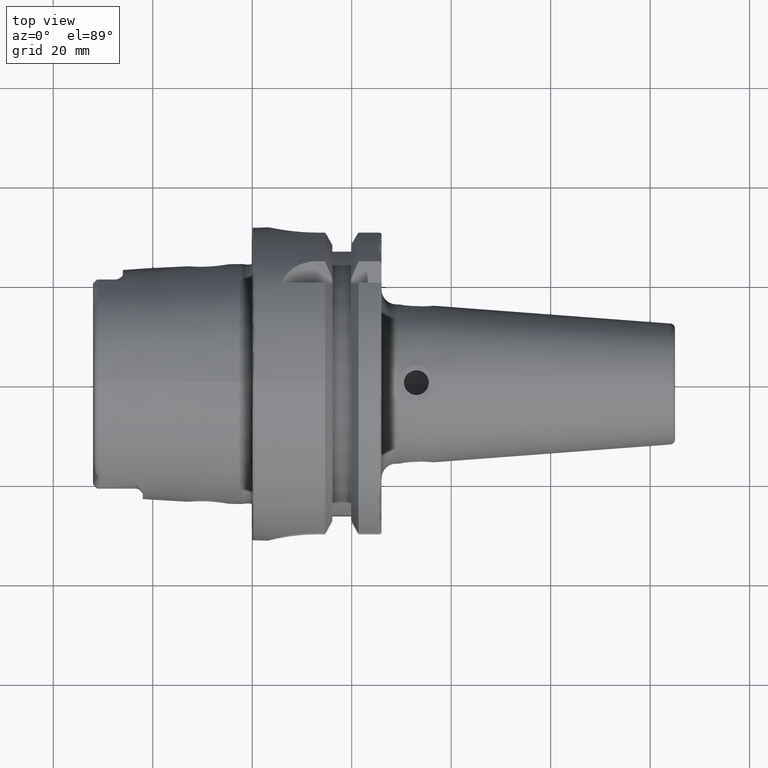
[diagram: clean part render]
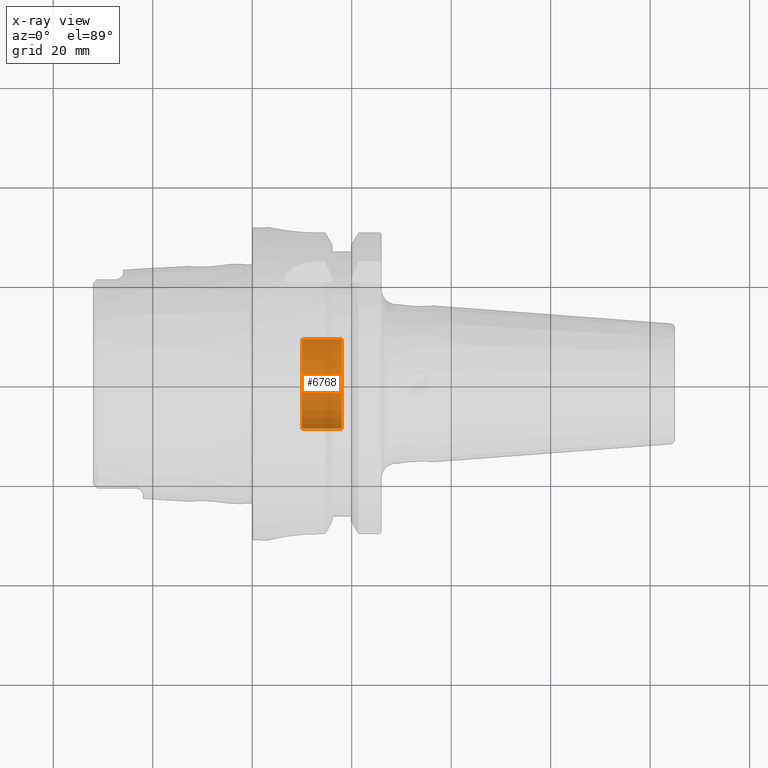
[diagram: x-ray — body ghosted, one internal face saturated and labeled with its STEP entity id]
A machine part, top view, then the same camera in x-ray: the body is ghosted and one INTERNAL B-rep face — a face not visible from any outside direction — is saturated and labeled: STEP entity #6768.
In plain terms, the highlighted cylindrical surface (partial cylindrical patch) has radius 9 mm, axis along (-1, 0, 0).
Its self-contained STEP definition (entity closure, byte-faithful):
#6703=CARTESIAN_POINT('',(3.937007874016E-1,0.E0,0.E0));
#6704=DIRECTION('',(1.E0,0.E0,0.E0));
#6705=DIRECTION('',(0.E0,-1.E0,0.E0));
#6706=AXIS2_PLACEMENT_3D('',#6703,#6704,#6705);
#6708=DIRECTION('',(1.E0,0.E0,0.E0));
#6709=VECTOR('',#6708,3.149606299213E-1);
#6710=CARTESIAN_POINT('',(3.937007874016E-1,3.543307086614E-1,0.E0));
#6711=LINE('',#6710,#6709);
#6717=DIRECTION('',(1.E0,0.E0,0.E0));
#6718=VECTOR('',#6717,3.149606299213E-1);
#6719=CARTESIAN_POINT('',(3.937007874016E-1,-3.543307086614E-1,0.E0));
#6720=LINE('',#6719,#6718);
#6726=CARTESIAN_POINT('',(7.086614173228E-1,0.E0,0.E0));
#6727=DIRECTION('',(-1.E0,0.E0,0.E0));
#6728=DIRECTION('',(0.E0,1.E0,0.E0));
#6729=AXIS2_PLACEMENT_3D('',#6726,#6727,#6728);
#6741=CARTESIAN_POINT('',(7.086614173228E-1,3.543307086614E-1,0.E0));
#6742=CARTESIAN_POINT('',(7.086614173228E-1,-3.543307086614E-1,0.E0));
#6743=VERTEX_POINT('',#6741);
#6744=VERTEX_POINT('',#6742);
#6745=CARTESIAN_POINT('',(3.937007874016E-1,3.543307086614E-1,0.E0));
#6746=VERTEX_POINT('',#6745);
#6747=CARTESIAN_POINT('',(3.937007874016E-1,-3.543307086614E-1,0.E0));
#6748=VERTEX_POINT('',#6747);
#6753=CARTESIAN_POINT('',(7.657480314961E-1,0.E0,0.E0));
#6754=DIRECTION('',(-1.E0,0.E0,0.E0));
#6755=DIRECTION('',(0.E0,1.E0,0.E0));
#6756=AXIS2_PLACEMENT_3D('',#6753,#6754,#6755);
#6757=CYLINDRICAL_SURFACE('',#6756,3.543307086614E-1);
#6759=ORIENTED_EDGE('',*,*,#6758,.T.);
#6761=ORIENTED_EDGE('',*,*,#6760,.T.);
#6763=ORIENTED_EDGE('',*,*,#6762,.F.);
#6765=ORIENTED_EDGE('',*,*,#6764,.T.);
#6766=EDGE_LOOP('',(#6759,#6761,#6763,#6765));
#6767=FACE_OUTER_BOUND('',#6766,.F.);
#6768=ADVANCED_FACE('',(#6767),#6757,.F.);
#6707=CIRCLE('',#6706,3.543307086614E-1);
#6730=CIRCLE('',#6729,3.543307086614E-1);
#6758=EDGE_CURVE('',#6746,#6743,#6711,.T.);
#6760=EDGE_CURVE('',#6743,#6744,#6730,.T.);
#6762=EDGE_CURVE('',#6748,#6744,#6720,.T.);
#6764=EDGE_CURVE('',#6748,#6746,#6707,.T.);